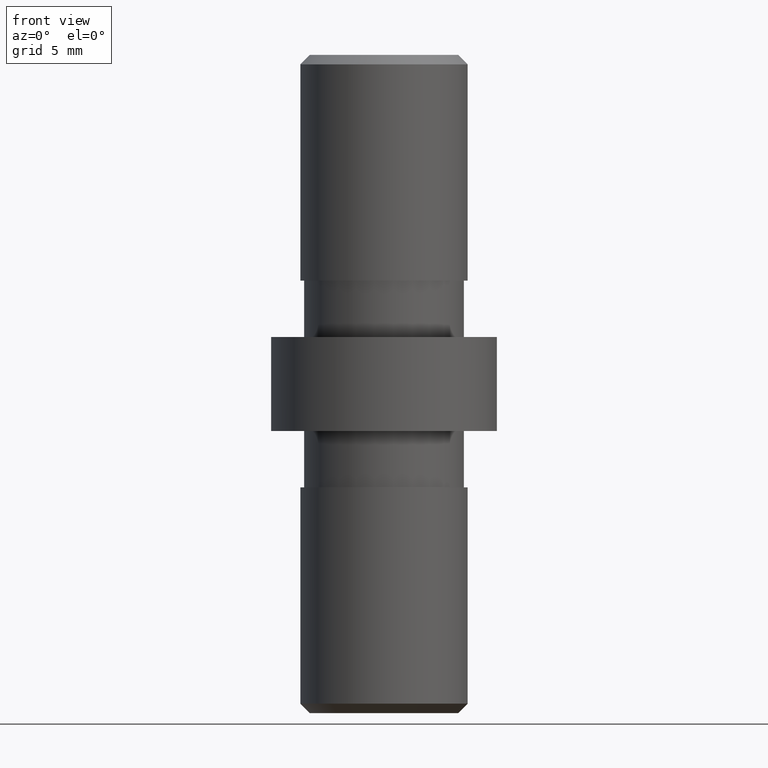
[diagram: clean part render]
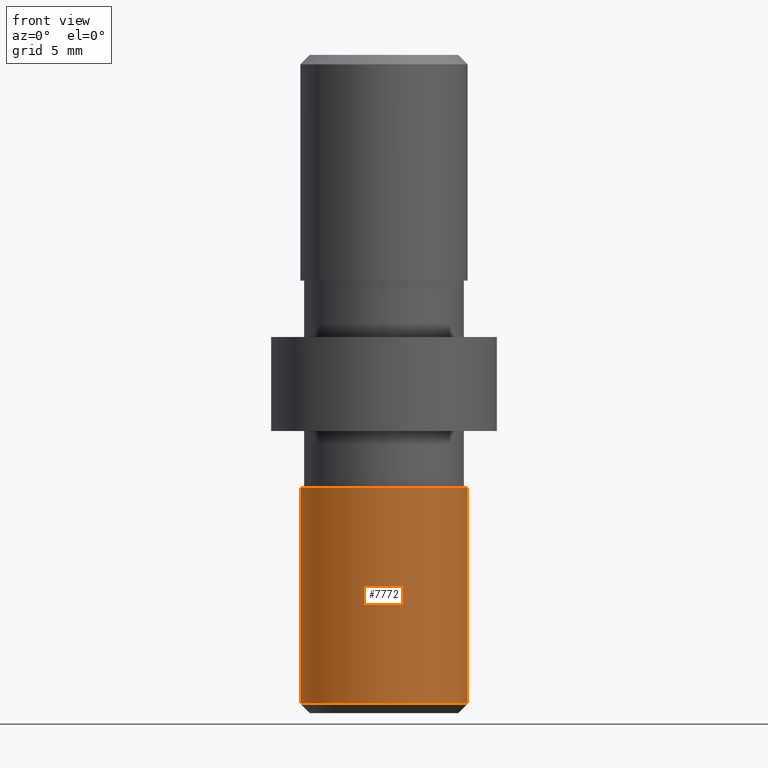
[diagram: same view with one face highlighted and labeled with its STEP entity id]
A machine part, front view. The second image highlights one B-rep face of the part: STEP entity #7772.
In plain terms, the highlighted cylindrical surface (partial cylindrical patch) has radius 4.45 mm, axis along (-0, -0, -1).
Its self-contained STEP definition (entity closure, byte-faithful):
#596 = CARTESIAN_POINT ( 'NONE',  ( -4.449999999999999289, -2.143131898507868643E-15, -5.500000000000000000 ) ) ;
#699 = DIRECTION ( 'NONE',  ( -0.000000000000000000, -0.000000000000000000, -1.000000000000000000 ) ) ;
#796 = AXIS2_PLACEMENT_3D ( 'NONE', #12735, #699, #1810 ) ;
#1152 = DIRECTION ( 'NONE',  ( -1.000000000000000000, 0.000000000000000000, 0.000000000000000000 ) ) ;
#1181 = EDGE_CURVE ( 'NONE', #3738, #7887, #1318, .T. ) ;
#1261 = AXIS2_PLACEMENT_3D ( 'NONE', #12986, #6617, #1152 ) ;
#1318 = LINE ( 'NONE', #11175, #2515 ) ;
#1731 = EDGE_CURVE ( 'NONE', #5724, #7887, #10925, .T. ) ;
#1810 = DIRECTION ( 'NONE',  ( -1.000000000000000000, 0.000000000000000000, 0.000000000000000000 ) ) ;
#2515 = VECTOR ( 'NONE', #9039, 1000.000000000000000 ) ;
#3738 = VERTEX_POINT ( 'NONE', #10406 ) ;
#3801 = ORIENTED_EDGE ( 'NONE', *, *, #1731, .T. ) ;
#5528 = EDGE_CURVE ( 'NONE', #12961, #5724, #8192, .T. ) ;
#5590 = AXIS2_PLACEMENT_3D ( 'NONE', #10089, #11191, #9107 ) ;
#5724 = VERTEX_POINT ( 'NONE', #7473 ) ;
#6617 = DIRECTION ( 'NONE',  ( 0.000000000000000000, 0.000000000000000000, 1.000000000000000000 ) ) ;
#6736 = CIRCLE ( 'NONE', #796, 4.449999999999999289 ) ;
#7038 = CARTESIAN_POINT ( 'NONE',  ( -4.449999999999999289, -2.143131898507868643E-15, -17.50000000000000000 ) ) ;
#7176 = VECTOR ( 'NONE', #10368, 1000.000000000000000 ) ;
#7246 = ORIENTED_EDGE ( 'NONE', *, *, #13060, .T. ) ;
#7473 = CARTESIAN_POINT ( 'NONE',  ( -4.449999999999999289, -2.143131898507868643E-15, -17.00000000000000711 ) ) ;
#7502 = CYLINDRICAL_SURFACE ( 'NONE', #5590, 4.449999999999999289 ) ;
#7772 = ADVANCED_FACE ( 'NONE', ( #8650 ), #7502, .T. ) ;
#7887 = VERTEX_POINT ( 'NONE', #9416 ) ;
#7901 = EDGE_LOOP ( 'NONE', ( #9047, #7246, #13098, #3801 ) ) ;
#8192 = LINE ( 'NONE', #7038, #7176 ) ;
#8650 = FACE_OUTER_BOUND ( 'NONE', #7901, .T. ) ;
#9039 = DIRECTION ( 'NONE',  ( -0.000000000000000000, -0.000000000000000000, -1.000000000000000000 ) ) ;
#9047 = ORIENTED_EDGE ( 'NONE', *, *, #1181, .F. ) ;
#9107 = DIRECTION ( 'NONE',  ( -1.000000000000000000, 0.000000000000000000, 0.000000000000000000 ) ) ;
#9416 = CARTESIAN_POINT ( 'NONE',  ( 4.449999999999999289, -1.598164072887296760E-15, -17.00000000000000711 ) ) ;
#10089 = CARTESIAN_POINT ( 'NONE',  ( 0.000000000000000000, -2.143131898507868643E-15, -17.50000000000000000 ) ) ;
#10368 = DIRECTION ( 'NONE',  ( -0.000000000000000000, -0.000000000000000000, -1.000000000000000000 ) ) ;
#10406 = CARTESIAN_POINT ( 'NONE',  ( 4.449999999999999289, -1.598164072887296760E-15, -5.500000000000000000 ) ) ;
#10925 = CIRCLE ( 'NONE', #1261, 4.449999999999999289 ) ;
#11175 = CARTESIAN_POINT ( 'NONE',  ( 4.449999999999999289, -1.598164072887296760E-15, -17.50000000000000000 ) ) ;
#11191 = DIRECTION ( 'NONE',  ( -0.000000000000000000, -0.000000000000000000, -1.000000000000000000 ) ) ;
#12735 = CARTESIAN_POINT ( 'NONE',  ( 0.000000000000000000, -2.143131898507868643E-15, -5.500000000000000000 ) ) ;
#12961 = VERTEX_POINT ( 'NONE', #596 ) ;
#12986 = CARTESIAN_POINT ( 'NONE',  ( 0.000000000000000000, -2.143131898507868643E-15, -17.00000000000000711 ) ) ;
#13060 = EDGE_CURVE ( 'NONE', #3738, #12961, #6736, .T. ) ;
#13098 = ORIENTED_EDGE ( 'NONE', *, *, #5528, .T. ) ;